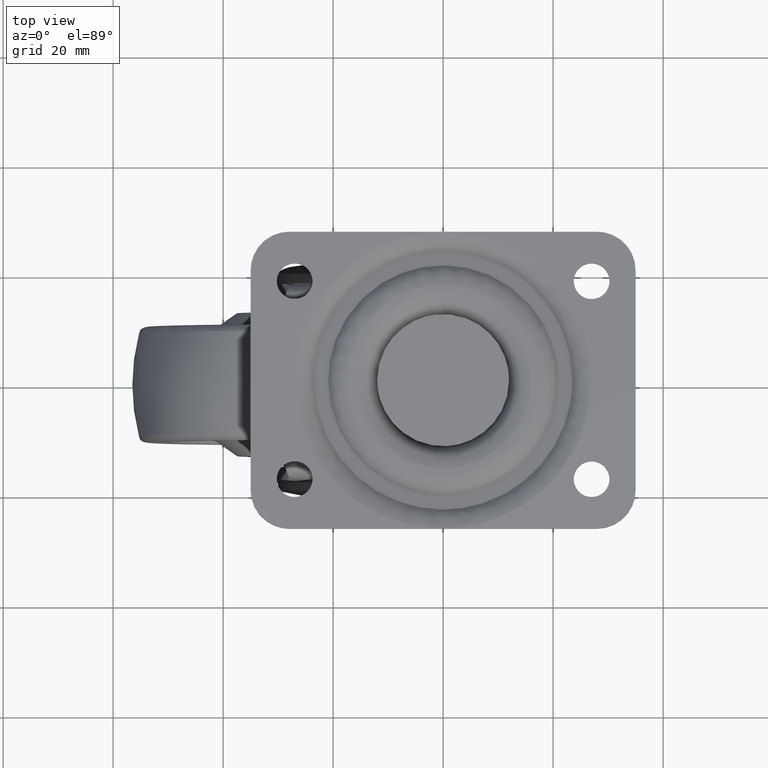
[diagram: clean part render]
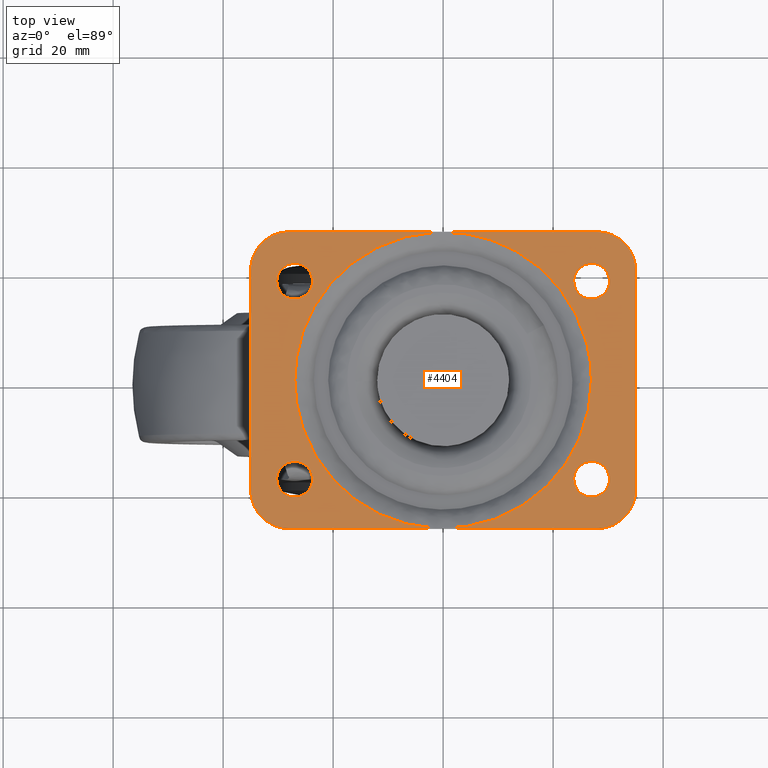
[diagram: same view with one face highlighted and labeled with its STEP entity id]
A machine part, top view. The second image highlights one B-rep face of the part: STEP entity #4404.
In plain terms, the highlighted face is a freeform B-spline surface patch.
Its self-contained STEP definition (entity closure, byte-faithful):
#2711=CARTESIAN_POINT('',(-27.383611262647111,14.772719039319590,-1.313236E-016));
#2712=VERTEX_POINT('',#2711);
#2713=CARTESIAN_POINT('',(-23.750000000000000,18.0,0.0));
#2714=VERTEX_POINT('',#2713);
#2715=CARTESIAN_POINT('',(-27.383611262647108,14.772719039319584,-1.313236E-016));
#2716=CARTESIAN_POINT('',(-27.192478388881490,14.750000000000004,0.0));
#2717=CARTESIAN_POINT('',(-27.0,14.750000000000000,0.0));
#2718=CARTESIAN_POINT('',(-23.749999999999996,14.749999999999993,0.0));
#2719=CARTESIAN_POINT('',(-23.750000000000000,18.0,0.0));
#2727=(BOUNDED_CURVE()B_SPLINE_CURVE(2,(#2715,#2716,#2717,#2718,#2719),.UNSPECIFIED.,.F.,.U.)B_SPLINE_CURVE_WITH_KNOTS((3,2,3),(0.229562473514320,0.250000000000000,0.500000000000000),.UNSPECIFIED.)CURVE()GEOMETRIC_REPRESENTATION_ITEM()RATIONAL_B_SPLINE_CURVE((0.956026754185290,0.976055948332096,1.0,0.707106781186547,1.0))REPRESENTATION_ITEM(''));
#2728=EDGE_CURVE('',#2712,#2714,#2727,.T.);
#2730=CARTESIAN_POINT('',(-26.801592246468189,21.243938094868408,-1.318390E-016));
#2731=VERTEX_POINT('',#2730);
#2732=CARTESIAN_POINT('',(-23.750000000000000,18.0,0.0));
#2733=CARTESIAN_POINT('',(-23.749999999999993,21.057294717361298,0.0));
#2734=CARTESIAN_POINT('',(-26.801592246468189,21.243938094868401,-1.318390E-016));
#2742=(BOUNDED_CURVE()B_SPLINE_CURVE(2,(#2732,#2733,#2734),.UNSPECIFIED.,.F.,.U.)B_SPLINE_CURVE_WITH_KNOTS((3,3),(0.500000000000000,0.739332962237337),.UNSPECIFIED.)CURVE()GEOMETRIC_REPRESENTATION_ITEM()RATIONAL_B_SPLINE_CURVE((1.0,0.719603993288591,0.976072041663277))REPRESENTATION_ITEM(''));
#2743=EDGE_CURVE('',#2714,#2731,#2742,.T.);
#2810=CARTESIAN_POINT('',(-30.250000000000000,18.0,0.0));
#2811=VERTEX_POINT('',#2810);
#2812=CARTESIAN_POINT('',(-30.250000000000000,18.0,0.0));
#2813=CARTESIAN_POINT('',(-30.250000000000000,15.113432790680831,0.0));
#2814=CARTESIAN_POINT('',(-27.383611262647115,14.772719039319586,-1.313236E-016));
#2822=(BOUNDED_CURVE()B_SPLINE_CURVE(2,(#2812,#2813,#2814),.UNSPECIFIED.,.F.,.U.)B_SPLINE_CURVE_WITH_KNOTS((3,3),(0.0,0.229562473514320),.UNSPECIFIED.)CURVE()GEOMETRIC_REPRESENTATION_ITEM()RATIONAL_B_SPLINE_CURVE((1.0,0.731050832854452,0.956026754185290))REPRESENTATION_ITEM(''));
#2823=EDGE_CURVE('',#2811,#2712,#2822,.T.);
#2857=CARTESIAN_POINT('',(-26.801592246468189,21.243938094868405,-1.318390E-016));
#2858=CARTESIAN_POINT('',(-26.900703519235940,21.250000000000004,0.0));
#2859=CARTESIAN_POINT('',(-27.0,21.250000000000000,0.0));
#2860=CARTESIAN_POINT('',(-30.250000000000000,21.249999999999996,0.0));
#2861=CARTESIAN_POINT('',(-30.250000000000000,18.0,0.0));
#2869=(BOUNDED_CURVE()B_SPLINE_CURVE(2,(#2857,#2858,#2859,#2860,#2861),.UNSPECIFIED.,.F.,.U.)B_SPLINE_CURVE_WITH_KNOTS((3,2,3),(0.739332962237338,0.750000000000000,1.0),.UNSPECIFIED.)CURVE()GEOMETRIC_REPRESENTATION_ITEM()RATIONAL_B_SPLINE_CURVE((0.976072041663279,0.987502787897958,1.0,0.707106781186547,1.0))REPRESENTATION_ITEM(''));
#2870=EDGE_CURVE('',#2731,#2811,#2869,.T.);
#2897=CARTESIAN_POINT('',(-27.383611262647111,-21.227280960680410,-1.313236E-016));
#2898=VERTEX_POINT('',#2897);
#2899=CARTESIAN_POINT('',(-23.750000000000000,-18.0,0.0));
#2900=VERTEX_POINT('',#2899);
#2901=CARTESIAN_POINT('',(-27.383611262647108,-21.227280960680414,-1.313236E-016));
#2902=CARTESIAN_POINT('',(-27.192478388881486,-21.249999999999996,0.0));
#2903=CARTESIAN_POINT('',(-27.0,-21.250000000000000,0.0));
#2904=CARTESIAN_POINT('',(-23.749999999999996,-21.249999999999996,0.0));
#2905=CARTESIAN_POINT('',(-23.750000000000000,-18.0,0.0));
#2913=(BOUNDED_CURVE()B_SPLINE_CURVE(2,(#2901,#2902,#2903,#2904,#2905),.UNSPECIFIED.,.F.,.U.)B_SPLINE_CURVE_WITH_KNOTS((3,2,3),(0.229562473514320,0.250000000000000,0.500000000000000),.UNSPECIFIED.)CURVE()GEOMETRIC_REPRESENTATION_ITEM()RATIONAL_B_SPLINE_CURVE((0.956026754185290,0.976055948332096,1.0,0.707106781186547,1.0))REPRESENTATION_ITEM(''));
#2914=EDGE_CURVE('',#2898,#2900,#2913,.T.);
#2916=CARTESIAN_POINT('',(-26.801592246468189,-14.756061905131601,-1.318390E-016));
#2917=VERTEX_POINT('',#2916);
#2918=CARTESIAN_POINT('',(-23.750000000000000,-18.0,0.0));
#2919=CARTESIAN_POINT('',(-23.749999999999993,-14.942705282638698,0.0));
#2920=CARTESIAN_POINT('',(-26.801592246468189,-14.756061905131595,-1.318390E-016));
#2928=(BOUNDED_CURVE()B_SPLINE_CURVE(2,(#2918,#2919,#2920),.UNSPECIFIED.,.F.,.U.)B_SPLINE_CURVE_WITH_KNOTS((3,3),(0.500000000000000,0.739332962237337),.UNSPECIFIED.)CURVE()GEOMETRIC_REPRESENTATION_ITEM()RATIONAL_B_SPLINE_CURVE((1.0,0.719603993288591,0.976072041663277))REPRESENTATION_ITEM(''));
#2929=EDGE_CURVE('',#2900,#2917,#2928,.T.);
#2996=CARTESIAN_POINT('',(-30.250000000000000,-18.0,0.0));
#2997=VERTEX_POINT('',#2996);
#2998=CARTESIAN_POINT('',(-30.250000000000000,-18.0,0.0));
#2999=CARTESIAN_POINT('',(-30.249999999999996,-20.886567209319168,0.0));
#3000=CARTESIAN_POINT('',(-27.383611262647104,-21.227280960680410,-1.313236E-016));
#3008=(BOUNDED_CURVE()B_SPLINE_CURVE(2,(#2998,#2999,#3000),.UNSPECIFIED.,.F.,.U.)B_SPLINE_CURVE_WITH_KNOTS((3,3),(0.0,0.229562473514320),.UNSPECIFIED.)CURVE()GEOMETRIC_REPRESENTATION_ITEM()RATIONAL_B_SPLINE_CURVE((1.0,0.731050832854451,0.956026754185291))REPRESENTATION_ITEM(''));
#3009=EDGE_CURVE('',#2997,#2898,#3008,.T.);
#3043=CARTESIAN_POINT('',(-26.801592246468189,-14.756061905131597,-1.318390E-016));
#3044=CARTESIAN_POINT('',(-26.900703519235940,-14.749999999999996,0.0));
#3045=CARTESIAN_POINT('',(-27.0,-14.750000000000000,0.0));
#3046=CARTESIAN_POINT('',(-30.250000000000000,-14.749999999999993,0.0));
#3047=CARTESIAN_POINT('',(-30.250000000000000,-18.0,0.0));
#3055=(BOUNDED_CURVE()B_SPLINE_CURVE(2,(#3043,#3044,#3045,#3046,#3047),.UNSPECIFIED.,.F.,.U.)B_SPLINE_CURVE_WITH_KNOTS((3,2,3),(0.739332962237338,0.750000000000000,1.0),.UNSPECIFIED.)CURVE()GEOMETRIC_REPRESENTATION_ITEM()RATIONAL_B_SPLINE_CURVE((0.976072041663279,0.987502787897958,1.0,0.707106781186547,1.0))REPRESENTATION_ITEM(''));
#3056=EDGE_CURVE('',#2917,#2997,#3055,.T.);
#3083=CARTESIAN_POINT('',(26.616388737352889,14.772719039319590,-1.313236E-016));
#3084=VERTEX_POINT('',#3083);
#3085=CARTESIAN_POINT('',(30.250000000000000,18.0,0.0));
#3086=VERTEX_POINT('',#3085);
#3087=CARTESIAN_POINT('',(26.616388737352889,14.772719039319584,-1.313236E-016));
#3088=CARTESIAN_POINT('',(26.807521611118514,14.750000000000005,0.0));
#3089=CARTESIAN_POINT('',(27.0,14.750000000000000,0.0));
#3090=CARTESIAN_POINT('',(30.250000000000000,14.749999999999993,0.0));
#3091=CARTESIAN_POINT('',(30.250000000000000,18.0,0.0));
#3099=(BOUNDED_CURVE()B_SPLINE_CURVE(2,(#3087,#3088,#3089,#3090,#3091),.UNSPECIFIED.,.F.,.U.)B_SPLINE_CURVE_WITH_KNOTS((3,2,3),(0.229562473514320,0.250000000000000,0.500000000000000),.UNSPECIFIED.)CURVE()GEOMETRIC_REPRESENTATION_ITEM()RATIONAL_B_SPLINE_CURVE((0.956026754185290,0.976055948332096,1.0,0.707106781186547,1.0))REPRESENTATION_ITEM(''));
#3100=EDGE_CURVE('',#3084,#3086,#3099,.T.);
#3102=CARTESIAN_POINT('',(27.198407753531800,21.243938094868408,-1.318390E-016));
#3103=VERTEX_POINT('',#3102);
#3104=CARTESIAN_POINT('',(30.250000000000000,18.0,0.0));
#3105=CARTESIAN_POINT('',(30.250000000000004,21.057294717361298,0.0));
#3106=CARTESIAN_POINT('',(27.198407753531804,21.243938094868401,-1.318390E-016));
#3114=(BOUNDED_CURVE()B_SPLINE_CURVE(2,(#3104,#3105,#3106),.UNSPECIFIED.,.F.,.U.)B_SPLINE_CURVE_WITH_KNOTS((3,3),(0.500000000000000,0.739332962237337),.UNSPECIFIED.)CURVE()GEOMETRIC_REPRESENTATION_ITEM()RATIONAL_B_SPLINE_CURVE((1.0,0.719603993288591,0.976072041663277))REPRESENTATION_ITEM(''));
#3115=EDGE_CURVE('',#3086,#3103,#3114,.T.);
#3182=CARTESIAN_POINT('',(23.750000000000000,18.0,0.0));
#3183=VERTEX_POINT('',#3182);
#3184=CARTESIAN_POINT('',(23.750000000000000,18.0,0.0));
#3185=CARTESIAN_POINT('',(23.749999999999993,15.113432790680831,0.0));
#3186=CARTESIAN_POINT('',(26.616388737352896,14.772719039319586,-1.313236E-016));
#3194=(BOUNDED_CURVE()B_SPLINE_CURVE(2,(#3184,#3185,#3186),.UNSPECIFIED.,.F.,.U.)B_SPLINE_CURVE_WITH_KNOTS((3,3),(0.0,0.229562473514320),.UNSPECIFIED.)CURVE()GEOMETRIC_REPRESENTATION_ITEM()RATIONAL_B_SPLINE_CURVE((1.0,0.731050832854452,0.956026754185290))REPRESENTATION_ITEM(''));
#3195=EDGE_CURVE('',#3183,#3084,#3194,.T.);
#3229=CARTESIAN_POINT('',(27.198407753531804,21.243938094868405,-1.318390E-016));
#3230=CARTESIAN_POINT('',(27.099296480764064,21.250000000000004,0.0));
#3231=CARTESIAN_POINT('',(27.0,21.250000000000000,0.0));
#3232=CARTESIAN_POINT('',(23.749999999999996,21.249999999999996,0.0));
#3233=CARTESIAN_POINT('',(23.750000000000000,18.0,0.0));
#3241=(BOUNDED_CURVE()B_SPLINE_CURVE(2,(#3229,#3230,#3231,#3232,#3233),.UNSPECIFIED.,.F.,.U.)B_SPLINE_CURVE_WITH_KNOTS((3,2,3),(0.739332962237338,0.750000000000000,1.0),.UNSPECIFIED.)CURVE()GEOMETRIC_REPRESENTATION_ITEM()RATIONAL_B_SPLINE_CURVE((0.976072041663279,0.987502787897958,1.0,0.707106781186547,1.0))REPRESENTATION_ITEM(''));
#3242=EDGE_CURVE('',#3103,#3183,#3241,.T.);
#3269=CARTESIAN_POINT('',(26.616388737352889,-21.227280960680410,-1.313236E-016));
#3270=VERTEX_POINT('',#3269);
#3271=CARTESIAN_POINT('',(30.250000000000000,-18.0,0.0));
#3272=VERTEX_POINT('',#3271);
#3273=CARTESIAN_POINT('',(26.616388737352896,-21.227280960680410,-1.313236E-016));
#3274=CARTESIAN_POINT('',(26.807521611118517,-21.249999999999993,0.0));
#3275=CARTESIAN_POINT('',(27.0,-21.250000000000000,0.0));
#3276=CARTESIAN_POINT('',(30.250000000000000,-21.249999999999996,0.0));
#3277=CARTESIAN_POINT('',(30.250000000000000,-18.0,0.0));
#3285=(BOUNDED_CURVE()B_SPLINE_CURVE(2,(#3273,#3274,#3275,#3276,#3277),.UNSPECIFIED.,.F.,.U.)B_SPLINE_CURVE_WITH_KNOTS((3,2,3),(0.229562473514320,0.250000000000000,0.500000000000000),.UNSPECIFIED.)CURVE()GEOMETRIC_REPRESENTATION_ITEM()RATIONAL_B_SPLINE_CURVE((0.956026754185290,0.976055948332096,1.0,0.707106781186547,1.0))REPRESENTATION_ITEM(''));
#3286=EDGE_CURVE('',#3270,#3272,#3285,.T.);
#3288=CARTESIAN_POINT('',(27.198407753531800,-14.756061905131601,-1.318390E-016));
#3289=VERTEX_POINT('',#3288);
#3290=CARTESIAN_POINT('',(30.250000000000000,-18.0,0.0));
#3291=CARTESIAN_POINT('',(30.250000000000004,-14.942705282638698,0.0));
#3292=CARTESIAN_POINT('',(27.198407753531804,-14.756061905131595,-1.318390E-016));
#3300=(BOUNDED_CURVE()B_SPLINE_CURVE(2,(#3290,#3291,#3292),.UNSPECIFIED.,.F.,.U.)B_SPLINE_CURVE_WITH_KNOTS((3,3),(0.500000000000000,0.739332962237337),.UNSPECIFIED.)CURVE()GEOMETRIC_REPRESENTATION_ITEM()RATIONAL_B_SPLINE_CURVE((1.0,0.719603993288591,0.976072041663277))REPRESENTATION_ITEM(''));
#3301=EDGE_CURVE('',#3272,#3289,#3300,.T.);
#3368=CARTESIAN_POINT('',(23.750000000000000,-18.0,0.0));
#3369=VERTEX_POINT('',#3368);
#3370=CARTESIAN_POINT('',(23.750000000000000,-18.0,0.0));
#3371=CARTESIAN_POINT('',(23.749999999999993,-20.886567209319161,0.0));
#3372=CARTESIAN_POINT('',(26.616388737352889,-21.227280960680414,-1.313236E-016));
#3380=(BOUNDED_CURVE()B_SPLINE_CURVE(2,(#3370,#3371,#3372),.UNSPECIFIED.,.F.,.U.)B_SPLINE_CURVE_WITH_KNOTS((3,3),(0.0,0.229562473514320),.UNSPECIFIED.)CURVE()GEOMETRIC_REPRESENTATION_ITEM()RATIONAL_B_SPLINE_CURVE((1.0,0.731050832854452,0.956026754185290))REPRESENTATION_ITEM(''));
#3381=EDGE_CURVE('',#3369,#3270,#3380,.T.);
#3415=CARTESIAN_POINT('',(27.198407753531807,-14.756061905131594,-1.318390E-016));
#3416=CARTESIAN_POINT('',(27.099296480764060,-14.750000000000005,0.0));
#3417=CARTESIAN_POINT('',(27.0,-14.750000000000000,0.0));
#3418=CARTESIAN_POINT('',(23.749999999999996,-14.749999999999993,0.0));
#3419=CARTESIAN_POINT('',(23.750000000000000,-18.0,0.0));
#3427=(BOUNDED_CURVE()B_SPLINE_CURVE(2,(#3415,#3416,#3417,#3418,#3419),.UNSPECIFIED.,.F.,.U.)B_SPLINE_CURVE_WITH_KNOTS((3,2,3),(0.739332962237338,0.750000000000000,1.0),.UNSPECIFIED.)CURVE()GEOMETRIC_REPRESENTATION_ITEM()RATIONAL_B_SPLINE_CURVE((0.976072041663279,0.987502787897958,1.0,0.707106781186547,1.0))REPRESENTATION_ITEM(''));
#3428=EDGE_CURVE('',#3289,#3369,#3427,.T.);
#3881=CARTESIAN_POINT('',(-23.463723184141639,13.285950105776200,-6.720702E-016));
#3882=VERTEX_POINT('',#3881);
#3896=CARTESIAN_POINT('',(-26.964101615137750,0.0,0.0));
#3897=VERTEX_POINT('',#3896);
#3898=CARTESIAN_POINT('',(-26.964101615137750,0.0,0.0));
#3899=CARTESIAN_POINT('',(-26.964101615137746,7.104088073158830,0.0));
#3900=CARTESIAN_POINT('',(-23.463723184141646,13.285950105776193,-6.720702E-016));
#3908=(BOUNDED_CURVE()B_SPLINE_CURVE(2,(#3898,#3899,#3900),.UNSPECIFIED.,.F.,.U.)B_SPLINE_CURVE_WITH_KNOTS((3,3),(0.0,0.083983638485106),.UNSPECIFIED.)CURVE()GEOMETRIC_REPRESENTATION_ITEM()RATIONAL_B_SPLINE_CURVE((1.0,0.901607047185728,0.869321279800543))REPRESENTATION_ITEM(''));
#3909=EDGE_CURVE('',#3897,#3882,#3908,.T.);
#3911=CARTESIAN_POINT('',(26.964101615137750,0.0,0.0));
#3912=VERTEX_POINT('',#3911);
#3913=CARTESIAN_POINT('',(26.964101615137750,0.0,0.0));
#3914=CARTESIAN_POINT('',(26.964101615137753,-26.964101615137753,0.0));
#3915=CARTESIAN_POINT('',(0.0,-26.964101615137750,0.0));
#3916=CARTESIAN_POINT('',(-26.964101615137753,-26.964101615137753,0.0));
#3917=CARTESIAN_POINT('',(-26.964101615137750,0.0,0.0));
#3925=(BOUNDED_CURVE()B_SPLINE_CURVE(2,(#3913,#3914,#3915,#3916,#3917),.UNSPECIFIED.,.F.,.U.)B_SPLINE_CURVE_WITH_KNOTS((3,2,3),(0.500000000000000,0.750000000000000,1.0),.UNSPECIFIED.)CURVE()GEOMETRIC_REPRESENTATION_ITEM()RATIONAL_B_SPLINE_CURVE((1.0,0.707106781186547,1.0,0.707106781186547,1.0))REPRESENTATION_ITEM(''));
#3926=EDGE_CURVE('',#3912,#3897,#3925,.T.);
#3928=CARTESIAN_POINT('',(13.285950105776189,23.463723184141639,-6.720702E-016));
#3929=VERTEX_POINT('',#3928);
#3930=CARTESIAN_POINT('',(13.285950105776195,23.463723184141649,-6.720702E-016));
#3931=CARTESIAN_POINT('',(26.964101615137750,15.718693247968318,0.0));
#3932=CARTESIAN_POINT('',(26.964101615137750,0.0,0.0));
#3940=(BOUNDED_CURVE()B_SPLINE_CURVE(2,(#3930,#3931,#3932),.UNSPECIFIED.,.F.,.U.)B_SPLINE_CURVE_WITH_KNOTS((3,3),(0.333983638485106,0.500000000000000),.UNSPECIFIED.)CURVE()GEOMETRIC_REPRESENTATION_ITEM()RATIONAL_B_SPLINE_CURVE((0.869321279800543,0.805499734000820,1.0))REPRESENTATION_ITEM(''));
#3941=EDGE_CURVE('',#3929,#3912,#3940,.T.);
#3992=CARTESIAN_POINT('',(-23.463723184141649,13.285950105776195,-6.720702E-016));
#3993=CARTESIAN_POINT('',(-15.718693247968318,26.964101615137750,0.0));
#3994=CARTESIAN_POINT('',(0.0,26.964101615137750,0.0));
#3995=CARTESIAN_POINT('',(7.104088073158842,26.964101615137746,0.0));
#3996=CARTESIAN_POINT('',(13.285950105776195,23.463723184141649,-6.720702E-016));
#4004=(BOUNDED_CURVE()B_SPLINE_CURVE(2,(#3992,#3993,#3994,#3995,#3996),.UNSPECIFIED.,.F.,.U.)B_SPLINE_CURVE_WITH_KNOTS((3,2,3),(0.083983638485106,0.250000000000000,0.333983638485106),.UNSPECIFIED.)CURVE()GEOMETRIC_REPRESENTATION_ITEM()RATIONAL_B_SPLINE_CURVE((0.869321279800543,0.805499734000820,1.0,0.901607047185728,0.869321279800543))REPRESENTATION_ITEM(''));
#4005=EDGE_CURVE('',#3882,#3929,#4004,.T.);
#4279=CARTESIAN_POINT('',(-38.496499864326417,29.697299895337519,0.0));
#4280=CARTESIAN_POINT('',(38.496501741872727,29.697299895337519,0.0));
#4281=CARTESIAN_POINT('',(-38.496499864326417,-29.697301343730391,0.0));
#4282=CARTESIAN_POINT('',(38.496501741872727,-29.697301343730391,0.0));
#4283=B_SPLINE_SURFACE_WITH_KNOTS('',1,1,((#4279,#4281),(#4280,#4282)),.UNSPECIFIED.,.F.,.F.,.U.,(2,2),(2,2),(0.0,76.993001606199158),(0.0,59.394601239067910),.UNSPECIFIED.);
#4284=CARTESIAN_POINT('',(28.0,27.0,0.0));
#4285=VERTEX_POINT('',#4284);
#4286=CARTESIAN_POINT('',(-28.0,27.0,0.0));
#4287=VERTEX_POINT('',#4286);
#4288=CARTESIAN_POINT('',(28.0,27.0,0.0));
#4289=CARTESIAN_POINT('',(-28.0,27.0,0.0));
#4290=QUASI_UNIFORM_CURVE('',1,(#4288,#4289),.UNSPECIFIED.,.F.,.U.);
#4291=EDGE_CURVE('',#4285,#4287,#4290,.T.);
#4292=ORIENTED_EDGE('',*,*,#4291,.T.);
#4293=CARTESIAN_POINT('',(-35.0,20.0,0.0));
#4294=VERTEX_POINT('',#4293);
#4295=CARTESIAN_POINT('',(-28.0,27.0,0.0));
#4296=CARTESIAN_POINT('',(-35.0,27.0,0.0));
#4297=CARTESIAN_POINT('',(-35.0,20.0,0.0));
#4305=(BOUNDED_CURVE()B_SPLINE_CURVE(2,(#4295,#4296,#4297),.UNSPECIFIED.,.F.,.U.)CURVE()GEOMETRIC_REPRESENTATION_ITEM()QUASI_UNIFORM_CURVE()RATIONAL_B_SPLINE_CURVE((1.0,0.707106781186547,1.0))REPRESENTATION_ITEM(''));
#4306=EDGE_CURVE('',#4287,#4294,#4305,.T.);
#4307=ORIENTED_EDGE('',*,*,#4306,.T.);
#4308=CARTESIAN_POINT('',(-35.0,-20.0,0.0));
#4309=VERTEX_POINT('',#4308);
#4310=CARTESIAN_POINT('',(-35.0,20.0,0.0));
#4311=CARTESIAN_POINT('',(-35.0,-20.0,0.0));
#4312=QUASI_UNIFORM_CURVE('',1,(#4310,#4311),.UNSPECIFIED.,.F.,.U.);
#4313=EDGE_CURVE('',#4294,#4309,#4312,.T.);
#4314=ORIENTED_EDGE('',*,*,#4313,.T.);
#4315=CARTESIAN_POINT('',(-28.0,-27.0,0.0));
#4316=VERTEX_POINT('',#4315);
#4317=CARTESIAN_POINT('',(-35.0,-20.0,0.0));
#4318=CARTESIAN_POINT('',(-35.0,-27.0,0.0));
#4319=CARTESIAN_POINT('',(-28.0,-27.0,0.0));
#4327=(BOUNDED_CURVE()B_SPLINE_CURVE(2,(#4317,#4318,#4319),.UNSPECIFIED.,.F.,.U.)CURVE()GEOMETRIC_REPRESENTATION_ITEM()QUASI_UNIFORM_CURVE()RATIONAL_B_SPLINE_CURVE((1.0,0.707106781186547,1.0))REPRESENTATION_ITEM(''));
#4328=EDGE_CURVE('',#4309,#4316,#4327,.T.);
#4329=ORIENTED_EDGE('',*,*,#4328,.T.);
#4330=CARTESIAN_POINT('',(28.0,-27.0,0.0));
#4331=VERTEX_POINT('',#4330);
#4332=CARTESIAN_POINT('',(-28.0,-27.0,0.0));
#4333=CARTESIAN_POINT('',(28.0,-27.0,0.0));
#4334=QUASI_UNIFORM_CURVE('',1,(#4332,#4333),.UNSPECIFIED.,.F.,.U.);
#4335=EDGE_CURVE('',#4316,#4331,#4334,.T.);
#4336=ORIENTED_EDGE('',*,*,#4335,.T.);
#4337=CARTESIAN_POINT('',(35.0,-20.0,0.0));
#4338=VERTEX_POINT('',#4337);
#4339=CARTESIAN_POINT('',(28.0,-27.0,0.0));
#4340=CARTESIAN_POINT('',(35.0,-27.0,0.0));
#4341=CARTESIAN_POINT('',(35.0,-20.0,0.0));
#4349=(BOUNDED_CURVE()B_SPLINE_CURVE(2,(#4339,#4340,#4341),.UNSPECIFIED.,.F.,.U.)CURVE()GEOMETRIC_REPRESENTATION_ITEM()QUASI_UNIFORM_CURVE()RATIONAL_B_SPLINE_CURVE((1.0,0.707106781186547,1.0))REPRESENTATION_ITEM(''));
#4350=EDGE_CURVE('',#4331,#4338,#4349,.T.);
#4351=ORIENTED_EDGE('',*,*,#4350,.T.);
#4352=CARTESIAN_POINT('',(35.0,20.0,0.0));
#4353=VERTEX_POINT('',#4352);
#4354=CARTESIAN_POINT('',(35.0,-20.0,0.0));
#4355=CARTESIAN_POINT('',(35.0,20.0,0.0));
#4356=QUASI_UNIFORM_CURVE('',1,(#4354,#4355),.UNSPECIFIED.,.F.,.U.);
#4357=EDGE_CURVE('',#4338,#4353,#4356,.T.);
#4358=ORIENTED_EDGE('',*,*,#4357,.T.);
#4359=CARTESIAN_POINT('',(35.0,20.0,0.0));
#4360=CARTESIAN_POINT('',(35.0,27.0,0.0));
#4361=CARTESIAN_POINT('',(28.0,27.0,0.0));
#4369=(BOUNDED_CURVE()B_SPLINE_CURVE(2,(#4359,#4360,#4361),.UNSPECIFIED.,.F.,.U.)CURVE()GEOMETRIC_REPRESENTATION_ITEM()QUASI_UNIFORM_CURVE()RATIONAL_B_SPLINE_CURVE((1.0,0.707106781186547,1.0))REPRESENTATION_ITEM(''));
#4370=EDGE_CURVE('',#4353,#4285,#4369,.T.);
#4371=ORIENTED_EDGE('',*,*,#4370,.T.);
#4372=EDGE_LOOP('',(#4292,#4307,#4314,#4329,#4336,#4351,#4358,#4371));
#4373=FACE_OUTER_BOUND('',#4372,.T.);
#4374=ORIENTED_EDGE('',*,*,#3926,.T.);
#4375=ORIENTED_EDGE('',*,*,#3909,.T.);
#4376=ORIENTED_EDGE('',*,*,#4005,.T.);
#4377=ORIENTED_EDGE('',*,*,#3941,.T.);
#4378=EDGE_LOOP('',(#4374,#4375,#4376,#4377));
#4379=FACE_BOUND('',#4378,.T.);
#4380=ORIENTED_EDGE('',*,*,#3301,.F.);
#4381=ORIENTED_EDGE('',*,*,#3286,.F.);
#4382=ORIENTED_EDGE('',*,*,#3381,.F.);
#4383=ORIENTED_EDGE('',*,*,#3428,.F.);
#4384=EDGE_LOOP('',(#4380,#4381,#4382,#4383));
#4385=FACE_BOUND('',#4384,.T.);
#4386=ORIENTED_EDGE('',*,*,#3115,.F.);
#4387=ORIENTED_EDGE('',*,*,#3100,.F.);
#4388=ORIENTED_EDGE('',*,*,#3195,.F.);
#4389=ORIENTED_EDGE('',*,*,#3242,.F.);
#4390=EDGE_LOOP('',(#4386,#4387,#4388,#4389));
#4391=FACE_BOUND('',#4390,.T.);
#4392=ORIENTED_EDGE('',*,*,#2929,.F.);
#4393=ORIENTED_EDGE('',*,*,#2914,.F.);
#4394=ORIENTED_EDGE('',*,*,#3009,.F.);
#4395=ORIENTED_EDGE('',*,*,#3056,.F.);
#4396=EDGE_LOOP('',(#4392,#4393,#4394,#4395));
#4397=FACE_BOUND('',#4396,.T.);
#4398=ORIENTED_EDGE('',*,*,#2743,.F.);
#4399=ORIENTED_EDGE('',*,*,#2728,.F.);
#4400=ORIENTED_EDGE('',*,*,#2823,.F.);
#4401=ORIENTED_EDGE('',*,*,#2870,.F.);
#4402=EDGE_LOOP('',(#4398,#4399,#4400,#4401));
#4403=FACE_BOUND('',#4402,.T.);
#4404=ADVANCED_FACE('',(#4373,#4379,#4385,#4391,#4397,#4403),#4283,.F.);